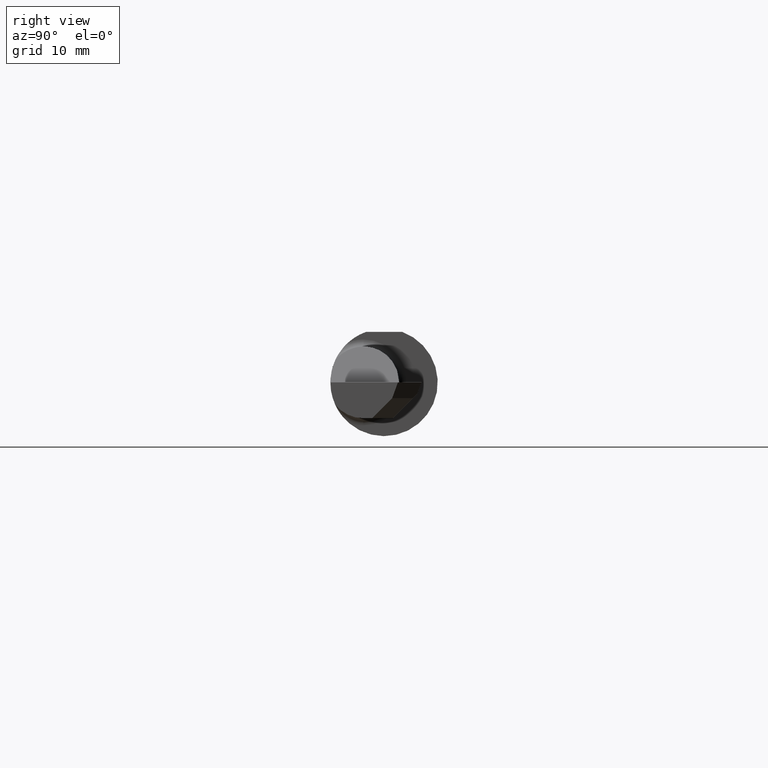
[diagram: clean part render]
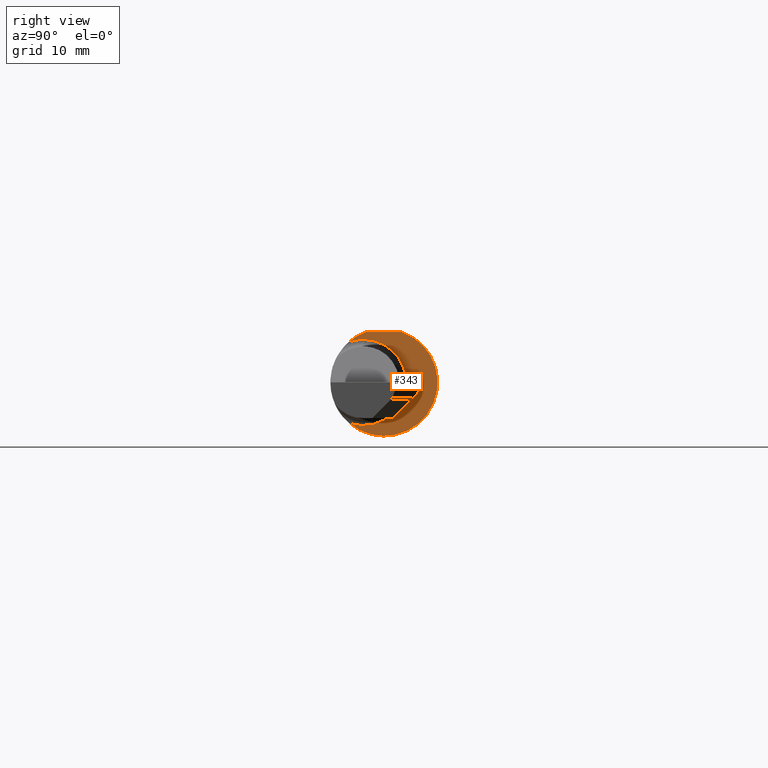
[diagram: same view with one face highlighted and labeled with its STEP entity id]
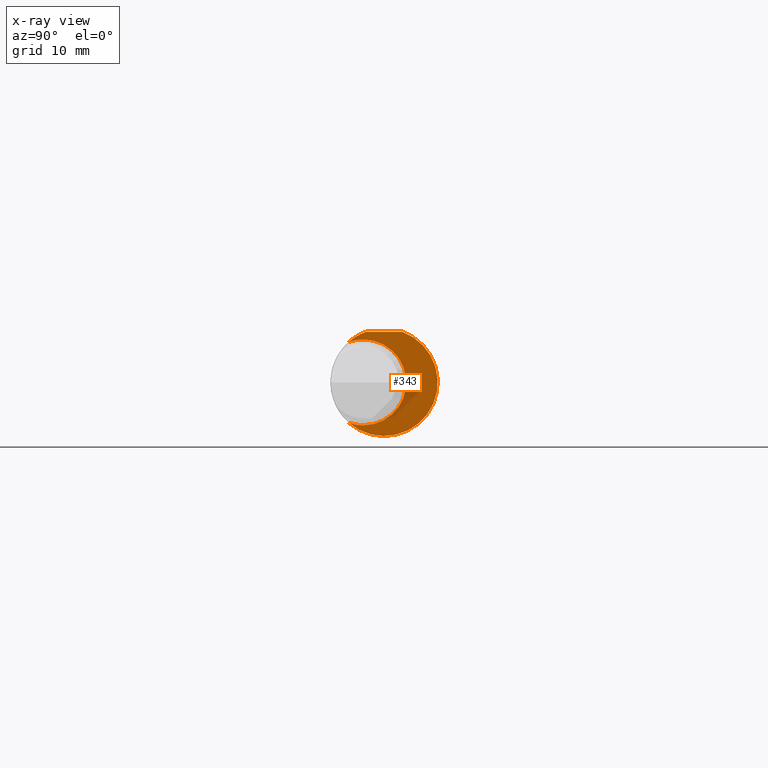
[diagram: x-ray of the same camera — body ghosted, the highlighted face saturated]
A machine part, right view. The second image highlights one B-rep face of the part: STEP entity #343.
The next image is the same camera in x-ray: the body ghosted, the highlighted face saturated — about 9% of this face is hidden behind the body in this view.
In plain terms, the highlighted planar face has unit normal (1, 0, 0).
Its self-contained STEP definition (entity closure, byte-faithful):
#10 = AXIS2_PLACEMENT_3D ( 'NONE', #583, #57, #889 ) ;
#37 = AXIS2_PLACEMENT_3D ( 'NONE', #403, #635, #937 ) ;
#42 = CIRCLE ( 'NONE', #10, 0.1499999999999999944 ) ;
#51 = CARTESIAN_POINT ( 'NONE',  ( 1.405000000000000249, 0.06325108694718213631, 0.1763499999999999790 ) ) ;
#54 = CIRCLE ( 'NONE', #344, 0.1499999999999999944 ) ;
#57 = DIRECTION ( 'NONE',  ( -1.000000000000000000, -0.000000000000000000, -0.000000000000000000 ) ) ;
#73 = ORIENTED_EDGE ( 'NONE', *, *, #507, .T. ) ;
#75 = AXIS2_PLACEMENT_3D ( 'NONE', #666, #967, #281 ) ;
#161 = EDGE_CURVE ( 'NONE', #529, #879, #54, .T. ) ;
#178 = DIRECTION ( 'NONE',  ( 0.000000000000000000, 0.000000000000000000, -1.000000000000000000 ) ) ;
#194 = CARTESIAN_POINT ( 'NONE',  ( 1.405000000000000249, -0.07234999999999996989, 0.1499999999999999944 ) ) ;
#232 = CARTESIAN_POINT ( 'NONE',  ( 1.405000000000000249, 0.000000000000000000, 0.000000000000000000 ) ) ;
#251 = CARTESIAN_POINT ( 'NONE',  ( 1.405000000000000249, -0.1232518659295093050, 0.1410992560040422727 ) ) ;
#254 = EDGE_CURVE ( 'NONE', #455, #529, #738, .T. ) ;
#281 = DIRECTION ( 'NONE',  ( 0.000000000000000000, 0.000000000000000000, -1.000000000000000000 ) ) ;
#338 = DIRECTION ( 'NONE',  ( 1.000000000000000000, 0.000000000000000000, 0.000000000000000000 ) ) ;
#341 = EDGE_LOOP ( 'NONE', ( #682, #563, #951, #816, #73, #415 ) ) ;
#343 = ADVANCED_FACE ( 'NONE', ( #650 ), #418, .T. ) ;
#344 = AXIS2_PLACEMENT_3D ( 'NONE', #497, #654, #178 ) ;
#355 = LINE ( 'NONE', #573, #950 ) ;
#403 = CARTESIAN_POINT ( 'NONE',  ( 1.405000000000000249, 0.2526500000000000412, 0.000000000000000000 ) ) ;
#408 = DIRECTION ( 'NONE',  ( -1.000000000000000000, -0.000000000000000000, -0.000000000000000000 ) ) ;
#415 = ORIENTED_EDGE ( 'NONE', *, *, #549, .T. ) ;
#418 = PLANE ( 'NONE',  #37 ) ;
#455 = VERTEX_POINT ( 'NONE', #251 ) ;
#476 = DIRECTION ( 'NONE',  ( 0.000000000000000000, 0.000000000000000000, -1.000000000000000000 ) ) ;
#494 = VERTEX_POINT ( 'NONE', #792 ) ;
#497 = CARTESIAN_POINT ( 'NONE',  ( 1.405000000000000249, -0.07234999999999998377, 0.000000000000000000 ) ) ;
#502 = VERTEX_POINT ( 'NONE', #690 ) ;
#507 = EDGE_CURVE ( 'NONE', #494, #605, #653, .T. ) ;
#521 = AXIS2_PLACEMENT_3D ( 'NONE', #232, #338, #476 ) ;
#529 = VERTEX_POINT ( 'NONE', #194 ) ;
#549 = EDGE_CURVE ( 'NONE', #605, #502, #355, .T. ) ;
#560 = AXIS2_PLACEMENT_3D ( 'NONE', #646, #408, #953 ) ;
#563 = ORIENTED_EDGE ( 'NONE', *, *, #254, .T. ) ;
#569 = EDGE_CURVE ( 'NONE', #879, #494, #42, .T. ) ;
#573 = CARTESIAN_POINT ( 'NONE',  ( 1.405000000000000249, 0.1749999999999999889, 0.1763499999999999790 ) ) ;
#576 = CARTESIAN_POINT ( 'NONE',  ( 1.405000000000000249, -0.07234999999999998377, -0.1499999999999999944 ) ) ;
#583 = CARTESIAN_POINT ( 'NONE',  ( 1.405000000000000249, -0.07234999999999998377, 0.000000000000000000 ) ) ;
#605 = VERTEX_POINT ( 'NONE', #51 ) ;
#635 = DIRECTION ( 'NONE',  ( 1.000000000000000000, 0.000000000000000000, 0.000000000000000000 ) ) ;
#646 = CARTESIAN_POINT ( 'NONE',  ( 1.405000000000000249, -0.07234999999999998377, 0.000000000000000000 ) ) ;
#650 = FACE_OUTER_BOUND ( 'NONE', #341, .T. ) ;
#653 = CIRCLE ( 'NONE', #521, 0.1873499999999999888 ) ;
#654 = DIRECTION ( 'NONE',  ( -1.000000000000000000, -0.000000000000000000, -0.000000000000000000 ) ) ;
#655 = EDGE_CURVE ( 'NONE', #502, #455, #798, .T. ) ;
#666 = CARTESIAN_POINT ( 'NONE',  ( 1.405000000000000249, 0.000000000000000000, 0.000000000000000000 ) ) ;
#682 = ORIENTED_EDGE ( 'NONE', *, *, #655, .T. ) ;
#690 = CARTESIAN_POINT ( 'NONE',  ( 1.405000000000000249, -0.06325108694718215019, 0.1763499999999999790 ) ) ;
#738 = CIRCLE ( 'NONE', #560, 0.1499999999999999944 ) ;
#792 = CARTESIAN_POINT ( 'NONE',  ( 1.405000000000000249, -0.1232518659295093050, -0.1410992560040422727 ) ) ;
#798 = CIRCLE ( 'NONE', #75, 0.1873499999999999888 ) ;
#816 = ORIENTED_EDGE ( 'NONE', *, *, #569, .T. ) ;
#879 = VERTEX_POINT ( 'NONE', #576 ) ;
#889 = DIRECTION ( 'NONE',  ( 0.000000000000000000, 0.000000000000000000, -1.000000000000000000 ) ) ;
#937 = DIRECTION ( 'NONE',  ( 0.000000000000000000, 0.000000000000000000, -1.000000000000000000 ) ) ;
#950 = VECTOR ( 'NONE', #952, 39.37007874015748143 ) ;
#951 = ORIENTED_EDGE ( 'NONE', *, *, #161, .T. ) ;
#952 = DIRECTION ( 'NONE',  ( 0.000000000000000000, -1.000000000000000000, 0.000000000000000000 ) ) ;
#953 = DIRECTION ( 'NONE',  ( 0.000000000000000000, 0.000000000000000000, -1.000000000000000000 ) ) ;
#967 = DIRECTION ( 'NONE',  ( 1.000000000000000000, 0.000000000000000000, 0.000000000000000000 ) ) ;